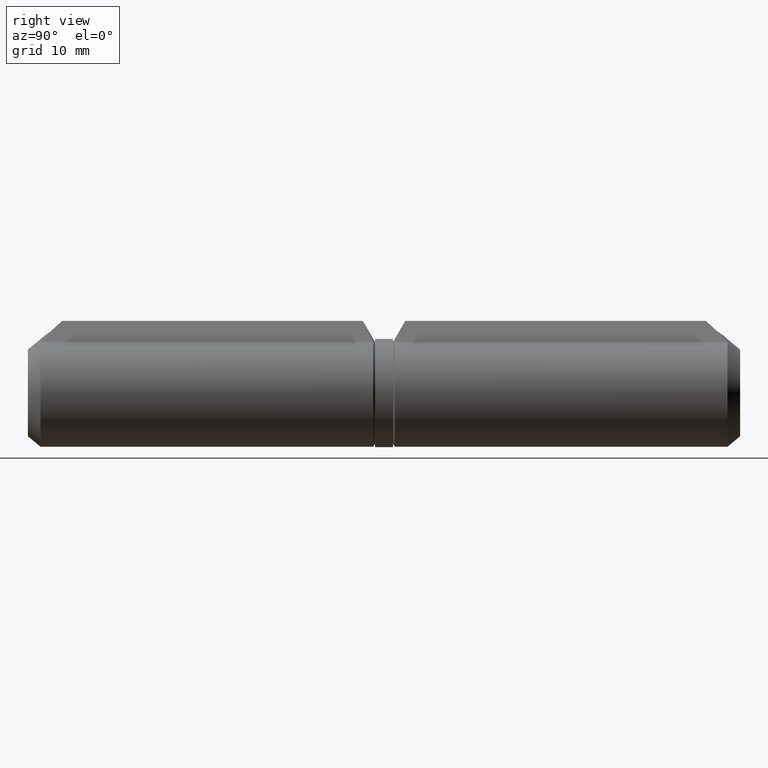
[diagram: clean part render]
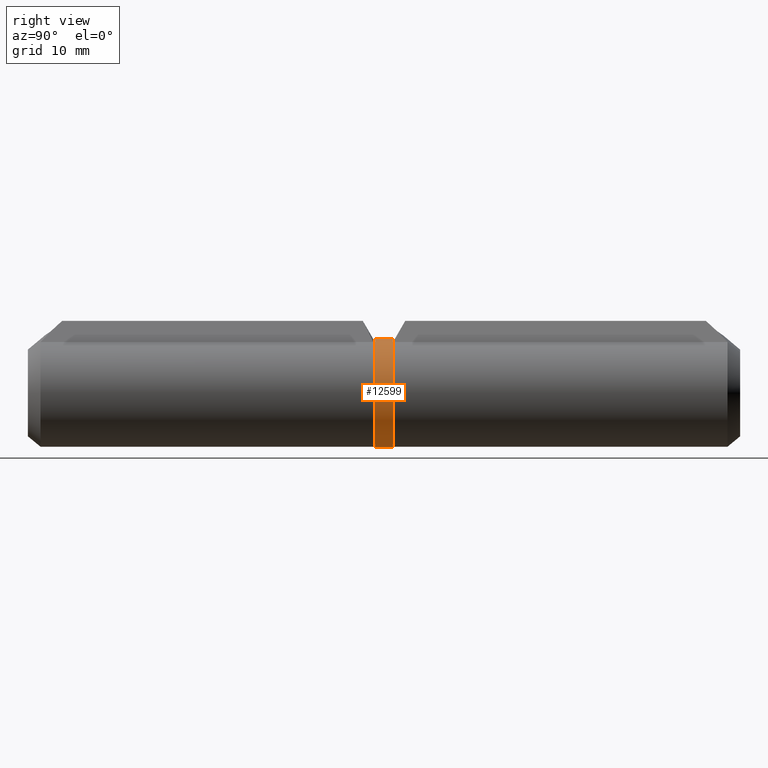
[diagram: same view with one face highlighted and labeled with its STEP entity id]
A machine part, right view. The second image highlights one B-rep face of the part: STEP entity #12599.
In plain terms, the highlighted cylindrical surface (bore or boss wall) has radius 6 mm, axis along (-0, -1, -0).
Its self-contained STEP definition (entity closure, byte-faithful):
#2522 = DIRECTION ( 'NONE',  ( 0.000000000000000000, 1.000000000000000000, 0.000000000000000000 ) ) ;
#2657 = EDGE_LOOP ( 'NONE', ( #14470 ) ) ;
#3595 = CARTESIAN_POINT ( 'NONE',  ( 0.000000000000000000, 0.000000000000000000, 0.000000000000000000 ) ) ;
#4041 = CIRCLE ( 'NONE', #5643, 6.000000000000000888 ) ;
#4071 = DIRECTION ( 'NONE',  ( -0.000000000000000000, -1.000000000000000000, -0.000000000000000000 ) ) ;
#4479 = ORIENTED_EDGE ( 'NONE', *, *, #7909, .T. ) ;
#5393 = CARTESIAN_POINT ( 'NONE',  ( 0.000000000000000000, 2.000000000000001776, 0.000000000000000000 ) ) ;
#5643 = AXIS2_PLACEMENT_3D ( 'NONE', #3595, #17185, #15805 ) ;
#6031 = AXIS2_PLACEMENT_3D ( 'NONE', #5393, #4071, #6689 ) ;
#6529 = VERTEX_POINT ( 'NONE', #14694 ) ;
#6689 = DIRECTION ( 'NONE',  ( 0.000000000000000000, 0.000000000000000000, -1.000000000000000000 ) ) ;
#7909 = EDGE_CURVE ( 'NONE', #12314, #12314, #4041, .T. ) ;
#8977 = CIRCLE ( 'NONE', #9905, 6.000000000000000888 ) ;
#9036 = EDGE_CURVE ( 'NONE', #6529, #6529, #8977, .T. ) ;
#9133 = CARTESIAN_POINT ( 'NONE',  ( 0.000000000000000000, 0.000000000000000000, 6.000000000000000888 ) ) ;
#9562 = CYLINDRICAL_SURFACE ( 'NONE', #6031, 6.000000000000000888 ) ;
#9905 = AXIS2_PLACEMENT_3D ( 'NONE', #13494, #2522, #16058 ) ;
#12314 = VERTEX_POINT ( 'NONE', #9133 ) ;
#12599 = ADVANCED_FACE ( 'NONE', ( #15978, #12776 ), #9562, .T. ) ;
#12776 = FACE_OUTER_BOUND ( 'NONE', #15791, .T. ) ;
#13494 = CARTESIAN_POINT ( 'NONE',  ( 0.000000000000000000, 2.000000000000001776, 0.000000000000000000 ) ) ;
#14470 = ORIENTED_EDGE ( 'NONE', *, *, #9036, .F. ) ;
#14694 = CARTESIAN_POINT ( 'NONE',  ( 0.000000000000000000, 2.000000000000001776, 6.000000000000000888 ) ) ;
#15791 = EDGE_LOOP ( 'NONE', ( #4479 ) ) ;
#15805 = DIRECTION ( 'NONE',  ( 0.000000000000000000, 0.000000000000000000, 1.000000000000000000 ) ) ;
#15978 = FACE_OUTER_BOUND ( 'NONE', #2657, .T. ) ;
#16058 = DIRECTION ( 'NONE',  ( 0.000000000000000000, 0.000000000000000000, 1.000000000000000000 ) ) ;
#17185 = DIRECTION ( 'NONE',  ( 0.000000000000000000, 1.000000000000000000, 0.000000000000000000 ) ) ;